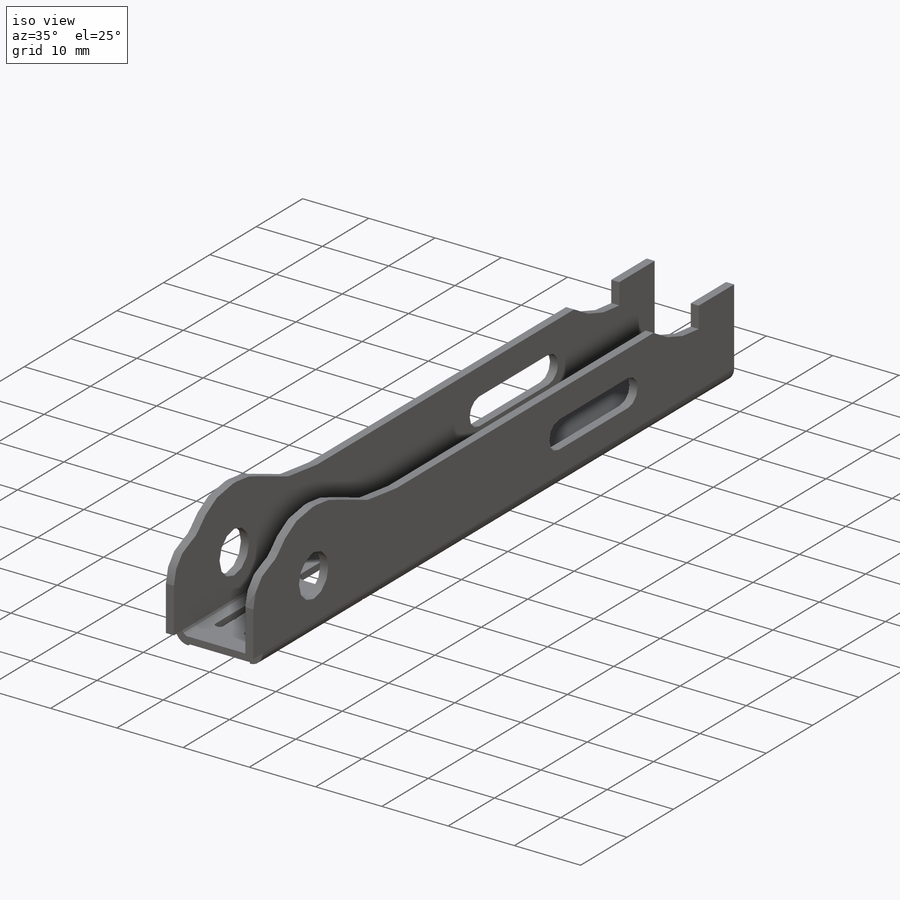
[diagram: iso view]
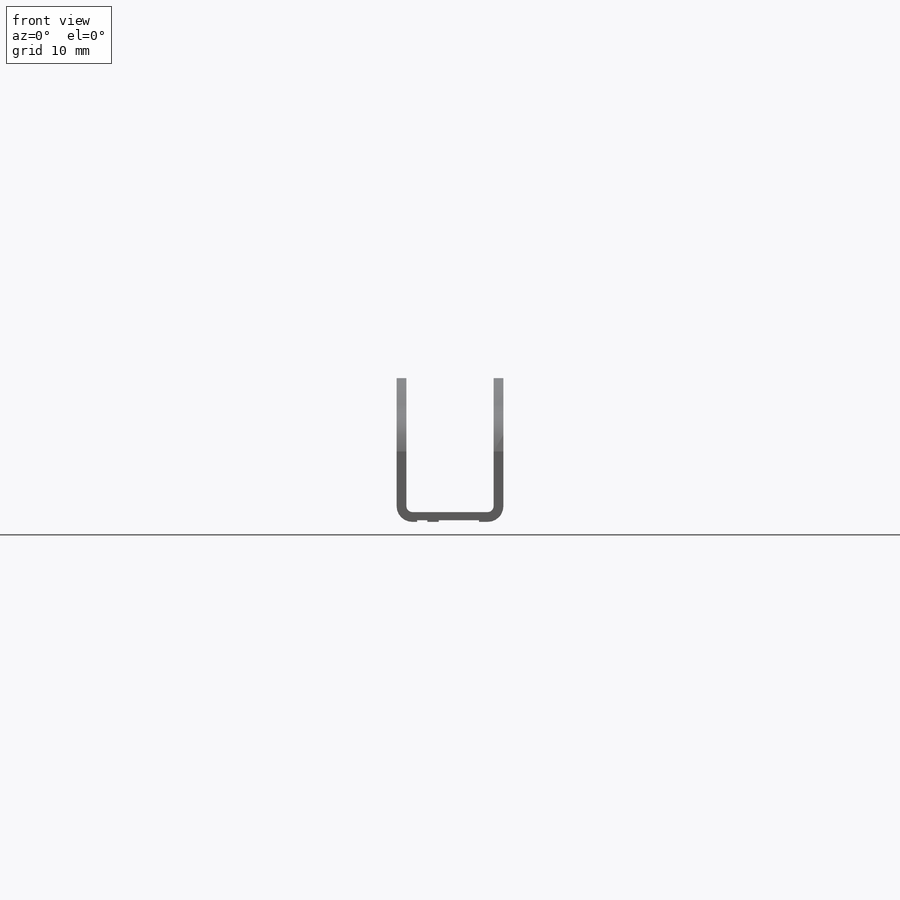
[diagram: front view]
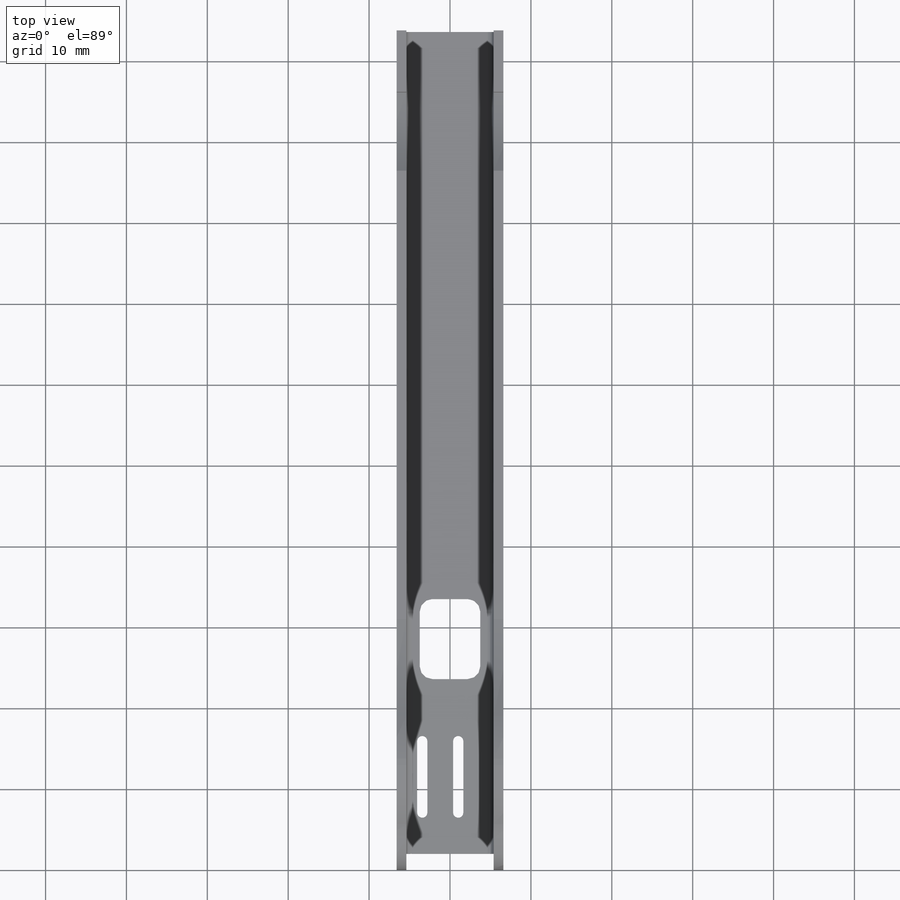
[diagram: top view]
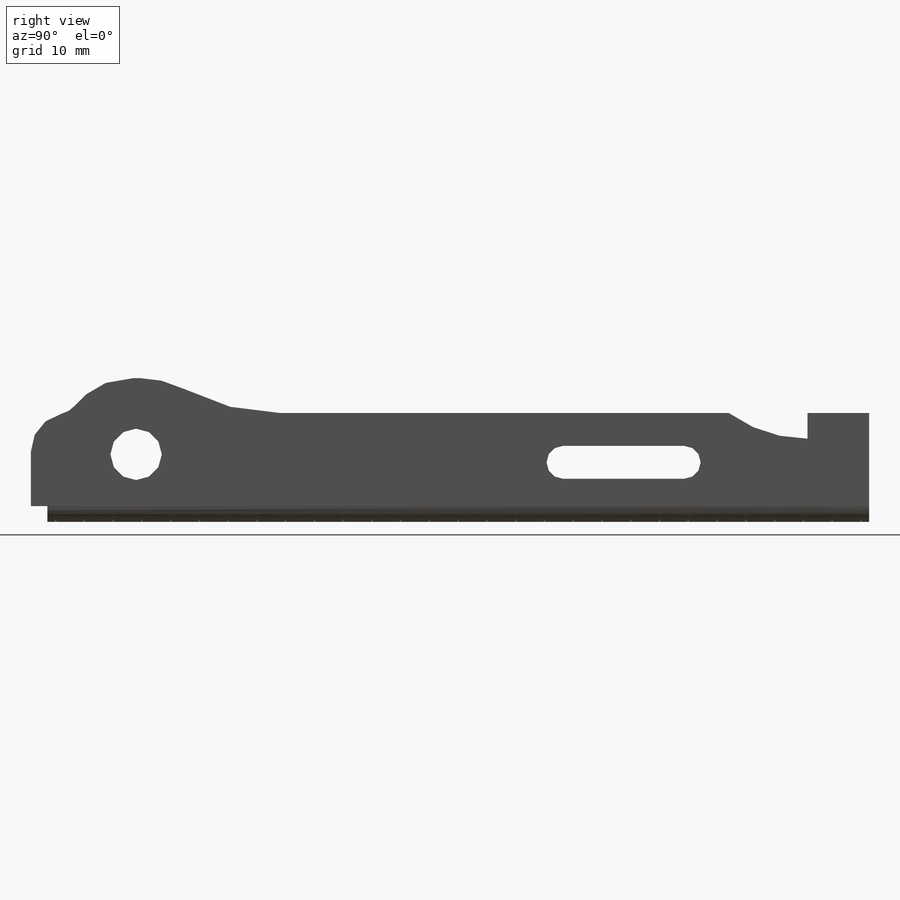
[diagram: right view]
SOLIDWORKS PART (.sldprt)
format: sldprt  version: not decoded by parser v0  size: 1,424,896 bytes
history: native  units: mm
features: sketch x9, cut_extrude x4, sheet_metal_op x3, material x1 + 2 further entries (+11 scaffold rows collapsed; 1 parser-record rows omitted)
feature tree (31):
  scaffold x11  (default folders/planes/origin — collapsed)
  material  "Material <not specified>"
  sketch  "Sketch1"  dims[D1=13.208mm D2=17.78mm]
  sheet_metal_op  "Sheet-Metal1"
  sheet_metal_op  "Base-Flange1"
  sheet_metal_op  "BaseBend2"
  sketch  "Sketch5"  dims[c1.D1=33.02mm c1.D2=33.02mm c1.D4=33.02mm c1.D3=9.525mm c1.D5=3.175mm c1.D6=25.4mm c2.D1=33.02mm c2.D2=12.7mm c2.D3=13.589mm c3.D1=12.7mm c3.D2=13.462mm c3.D4=4.7625mm c4.D2=7.62mm c4.D4=13.335mm]
  cut_extrude  "Cut-Extrude2"  [1 undecoded]
  sketch  "Sketch6"  dims[D1=4.064mm D2=22.86mm D3=14.986mm]
  cut_extrude  "Cut-Extrude3"  [1 undecoded]
  sketch  "Sketch7"  dims[c1.D7=~0.411182mm c1.D11=1.5875mm c1.D1=2.032mm c1.D2=~1.21412mm c1.D3=~1.21412mm c1.D4=21.59mm c1.D5=9.906mm c1.D6=7.493mm c2.D7=3.175mm c2.D8=1.27mm c2.D9=5.08mm c2.D10=2.54mm]
  cut_extrude  "Cut-Extrude4"  [1 undecoded]
  sketch  "Sketch10"  dims[D1=0.2032mm D2=5.08mm D3=2.54mm D4=1.0mm D6=1.651mm D7=2.286mm D5=95.0]
  sketch  "Sketch8"  dims[c1.D1=2.794mm c1.D2=0.254mm c1.D3=5.588mm c2.D1=5.08mm c2.D3=2.794mm c2.D4=0.889mm c3.D3=2.667mm c3.D6=1.905mm c3.D7=0.889mm c3.D1=1.27mm c3.D5=29.0 c4.D1=0.254mm]
  sketch  "Sketch9"  dims[D1=~2.38125mm]
  cut_extrude  "Cut-Extrude5"  Depth=0.2032mm
  "Flat-Pattern1"
  sketch  "Bend-Lines1"
  sketch  "Bounding-Box1"
  "Flatten-<BaseBend2>1"
  parser-record x1  (decoder bookkeeping rows leaked as tree rows — omitted from the tree; the rows remain in map.json)
decode coverage: 8 of 16 modeling features carry decoded parameters; 2 rows unclassified (native names shown)
note: ~ marks probable driven/reference dimensions
note: 3 parameter values undecoded
summary: no parameter record found for 3 features
note: suppression state not decoded; provenance and decode notes live in map.json
